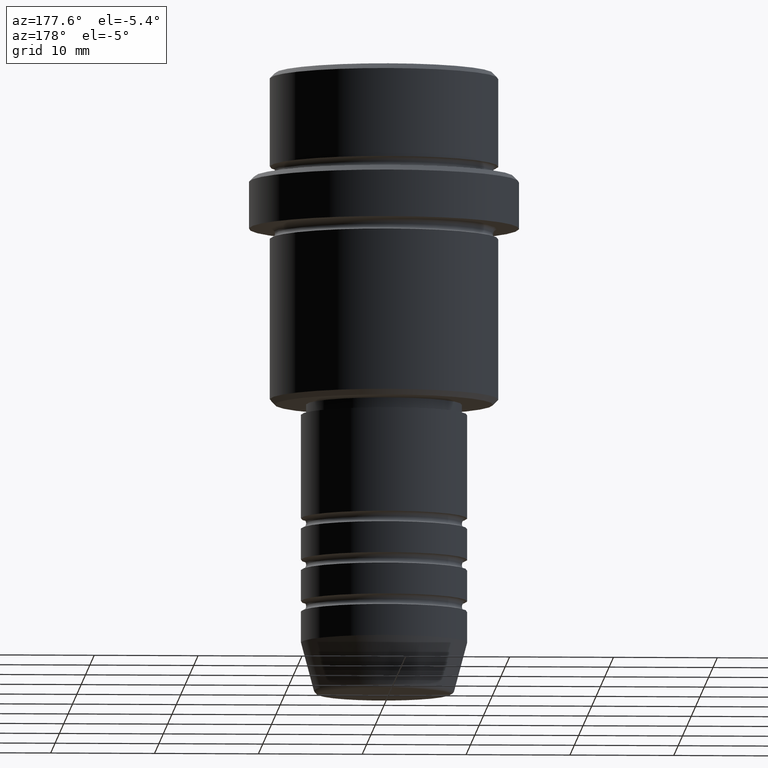
[diagram: clean part render]
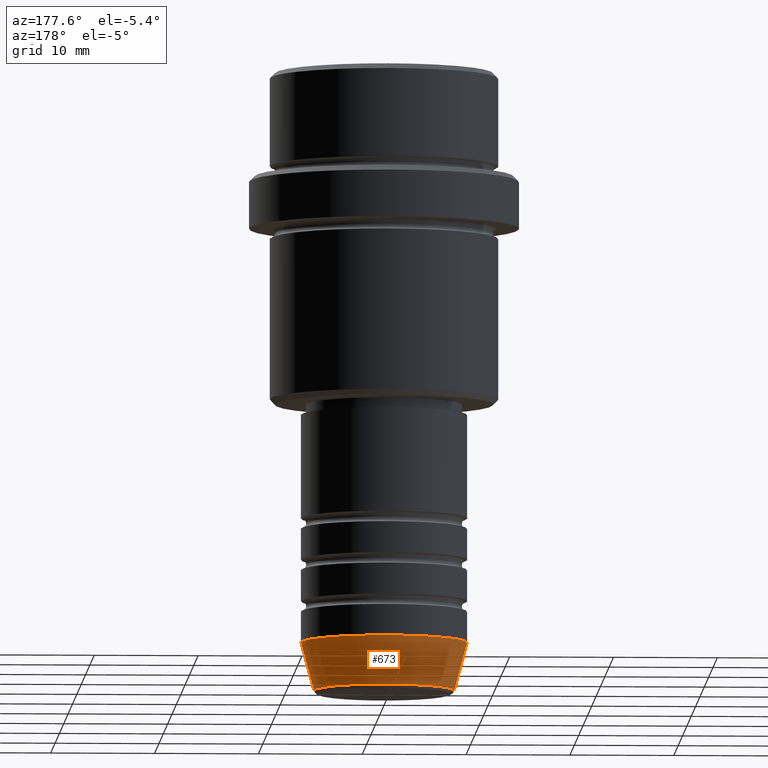
[diagram: same view with one face highlighted and labeled with its STEP entity id]
A machine part, auxiliary view. The second image highlights one B-rep face of the part: STEP entity #673.
In plain terms, the highlighted conical surface has half-angle 15 deg.
Its self-contained STEP definition (entity closure, byte-faithful):
#191 = EDGE_CURVE ( 'NONE', #367, #1267, #1360, .T. ) ;
#244 = DIRECTION ( 'NONE',  ( -0.000000000000000000, -0.000000000000000000, 1.000000000000000000 ) ) ;
#286 = ORIENTED_EDGE ( 'NONE', *, *, #1252, .F. ) ;
#296 = EDGE_CURVE ( 'NONE', #367, #1188, #1284, .T. ) ;
#322 = CARTESIAN_POINT ( 'NONE',  ( 8.000000000000000000, 0.000000000000000000, -55.00000000000000711 ) ) ;
#358 = CONICAL_SURFACE ( 'NONE', #1319, 8.000000000000000000, 0.2617993877991500740 ) ;
#367 = VERTEX_POINT ( 'NONE', #975 ) ;
#423 = ORIENTED_EDGE ( 'NONE', *, *, #1031, .T. ) ;
#449 = CARTESIAN_POINT ( 'NONE',  ( 0.000000000000000000, 0.000000000000000000, -55.00000000000000711 ) ) ;
#465 = DIRECTION ( 'NONE',  ( -0.000000000000000000, -0.000000000000000000, 1.000000000000000000 ) ) ;
#469 = DIRECTION ( 'NONE',  ( 1.000000000000000000, 0.000000000000000000, 0.000000000000000000 ) ) ;
#516 = DIRECTION ( 'NONE',  ( 1.000000000000000000, 0.000000000000000000, 0.000000000000000000 ) ) ;
#520 = ORIENTED_EDGE ( 'NONE', *, *, #191, .T. ) ;
#561 = DIRECTION ( 'NONE',  ( 1.000000000000000000, 0.000000000000000000, 0.000000000000000000 ) ) ;
#593 = AXIS2_PLACEMENT_3D ( 'NONE', #449, #465, #561 ) ;
#600 = CARTESIAN_POINT ( 'NONE',  ( 0.000000000000000000, 0.000000000000000000, -55.00000000000000711 ) ) ;
#660 = CARTESIAN_POINT ( 'NONE',  ( -8.000000000000000000, 9.797174393178825657E-16, -55.00000000000000711 ) ) ;
#673 = ADVANCED_FACE ( 'NONE', ( #1120 ), #358, .T. ) ;
#699 = VERTEX_POINT ( 'NONE', #995 ) ;
#934 = VECTOR ( 'NONE', #1167, 1000.000000000000000 ) ;
#975 = CARTESIAN_POINT ( 'NONE',  ( 6.759553456999437770, 0.000000000000000000, -59.62940952255127058 ) ) ;
#995 = CARTESIAN_POINT ( 'NONE',  ( -8.000000000000000000, 9.797174393178825657E-16, -55.00000000000000711 ) ) ;
#1031 = EDGE_CURVE ( 'NONE', #1267, #699, #1292, .T. ) ;
#1052 = VECTOR ( 'NONE', #1067, 1000.000000000000000 ) ;
#1067 = DIRECTION ( 'NONE',  ( -0.2588190451025213501, 3.169619151431772337E-17, 0.9659258262890680902 ) ) ;
#1113 = EDGE_LOOP ( 'NONE', ( #520, #423, #286, #1145 ) ) ;
#1120 = FACE_OUTER_BOUND ( 'NONE', #1113, .T. ) ;
#1124 = DIRECTION ( 'NONE',  ( -0.000000000000000000, -0.000000000000000000, 1.000000000000000000 ) ) ;
#1129 = CARTESIAN_POINT ( 'NONE',  ( 0.000000000000000000, 0.000000000000000000, -59.62940952255127058 ) ) ;
#1145 = ORIENTED_EDGE ( 'NONE', *, *, #296, .F. ) ;
#1167 = DIRECTION ( 'NONE',  ( 0.2588190451025213501, 0.000000000000000000, 0.9659258262890680902 ) ) ;
#1188 = VERTEX_POINT ( 'NONE', #1283 ) ;
#1252 = EDGE_CURVE ( 'NONE', #1188, #699, #1339, .T. ) ;
#1267 = VERTEX_POINT ( 'NONE', #1338 ) ;
#1283 = CARTESIAN_POINT ( 'NONE',  ( 8.000000000000000000, 0.000000000000000000, -55.00000000000000711 ) ) ;
#1284 = LINE ( 'NONE', #322, #934 ) ;
#1292 = LINE ( 'NONE', #660, #1052 ) ;
#1319 = AXIS2_PLACEMENT_3D ( 'NONE', #600, #244, #469 ) ;
#1338 = CARTESIAN_POINT ( 'NONE',  ( -6.759553456999437770, 9.037619948979306213E-16, -59.62940952255127058 ) ) ;
#1339 = CIRCLE ( 'NONE', #593, 8.000000000000000000 ) ;
#1360 = CIRCLE ( 'NONE', #1402, 6.759553456999437770 ) ;
#1402 = AXIS2_PLACEMENT_3D ( 'NONE', #1129, #1124, #516 ) ;